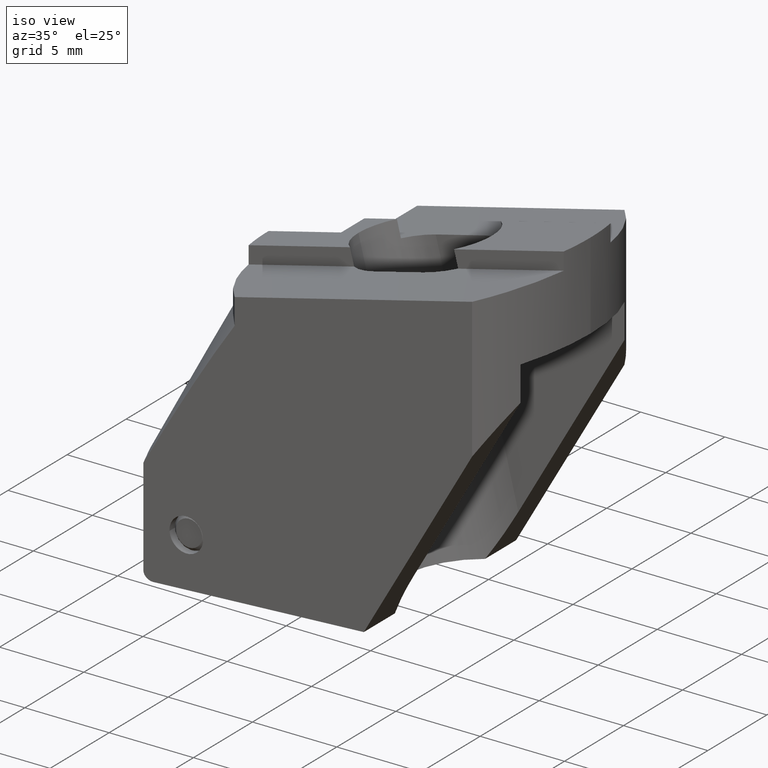
[diagram: clean part render]
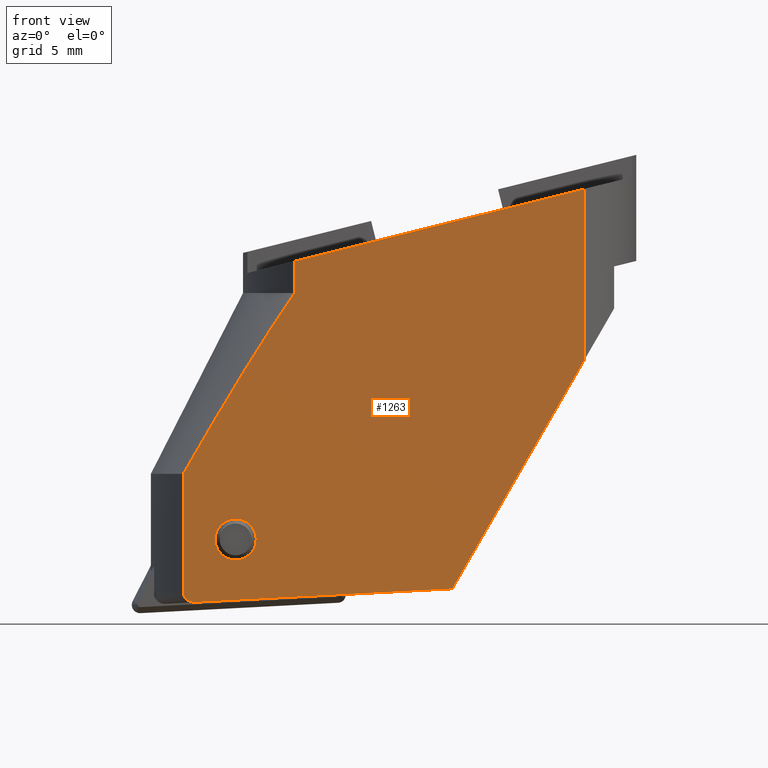
[diagram: tour spotlight — one face highlighted and labeled with its STEP entity id]
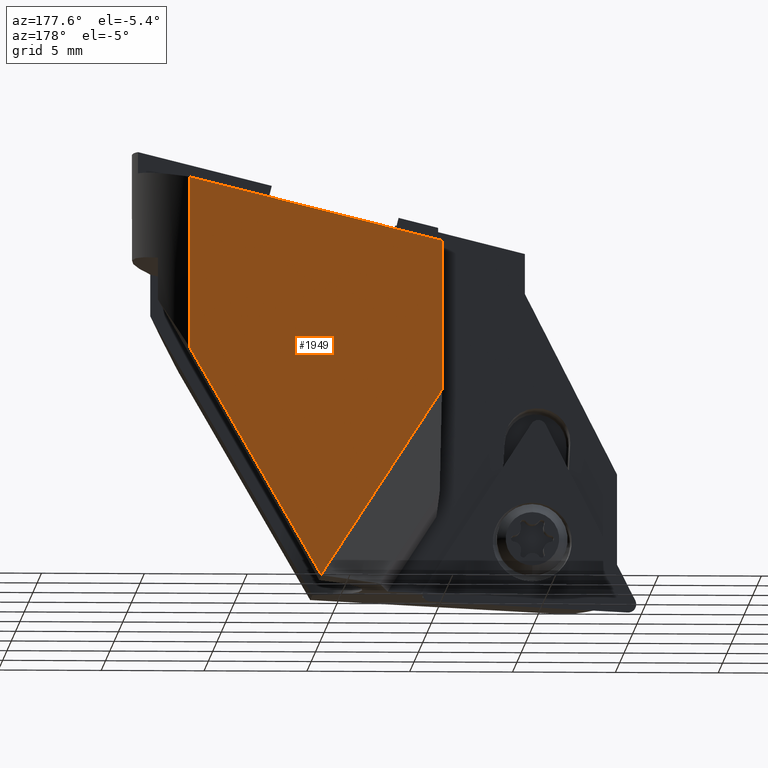
[diagram: tour spotlight — one face highlighted and labeled with its STEP entity id]
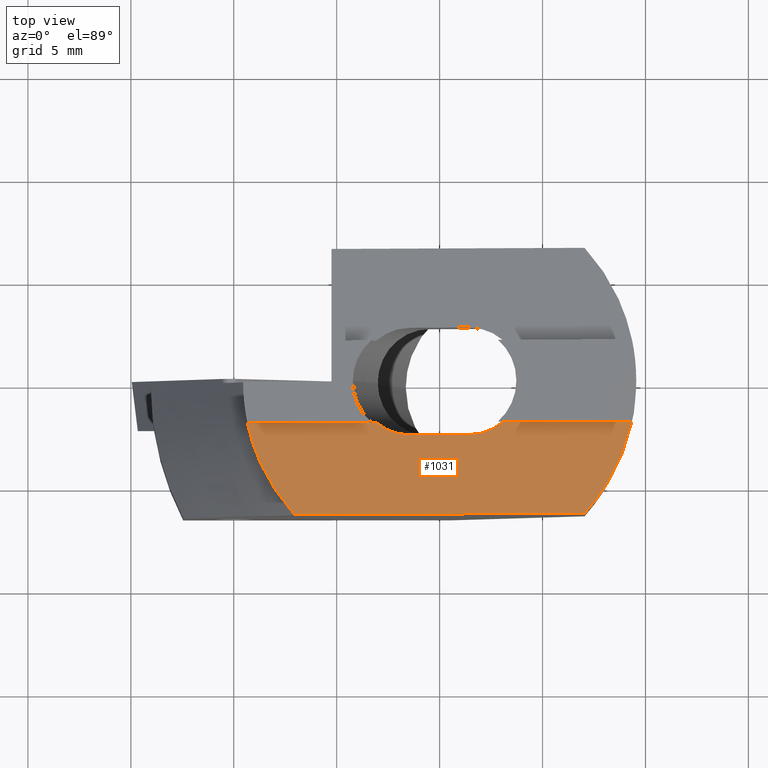
[diagram: tour spotlight — one face highlighted and labeled with its STEP entity id]
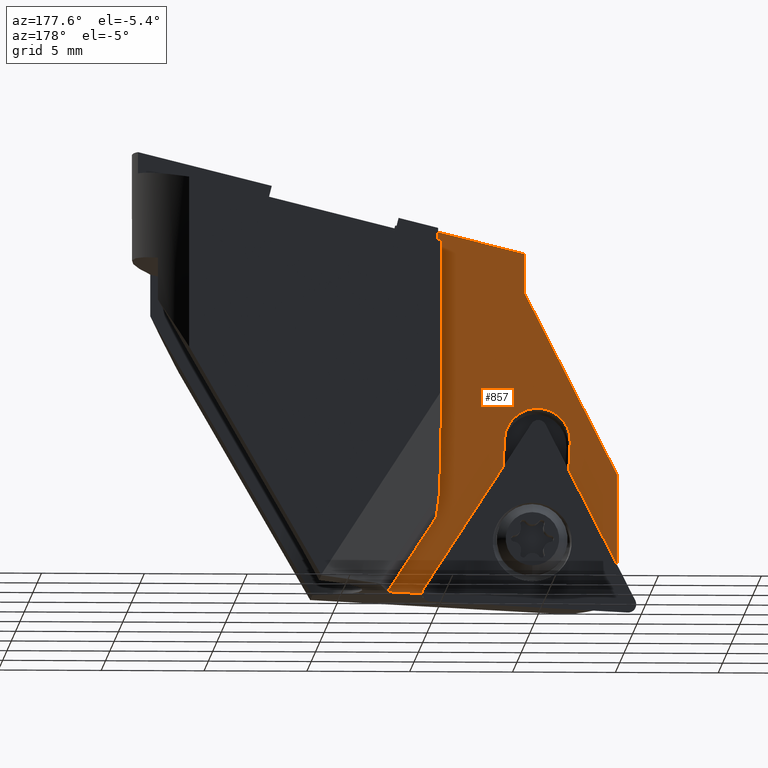
[diagram: tour spotlight — one face highlighted and labeled with its STEP entity id]
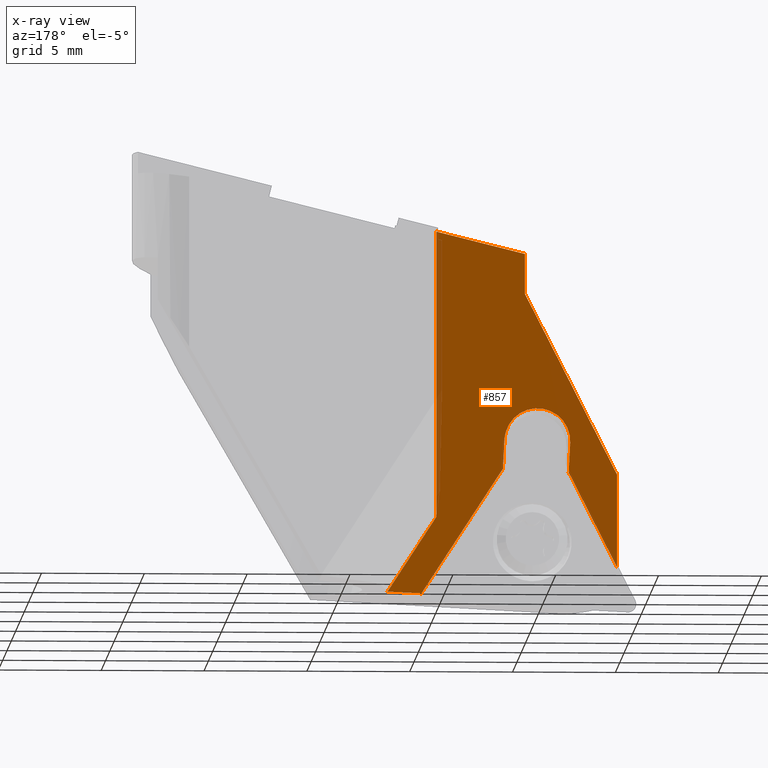
[diagram: x-ray of the same camera — body ghosted, this tour face saturated]
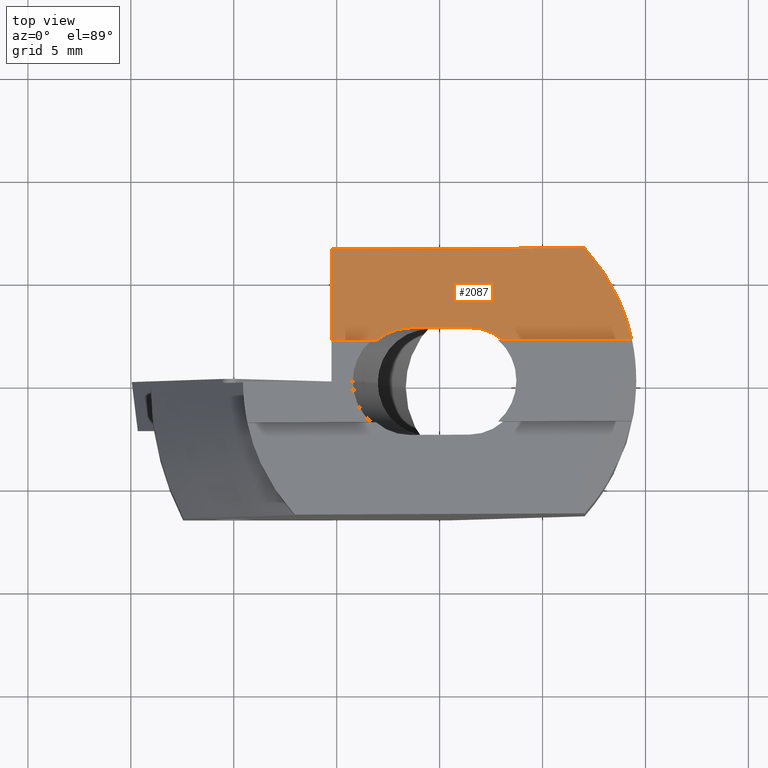
[diagram: tour spotlight — one face highlighted and labeled with its STEP entity id]
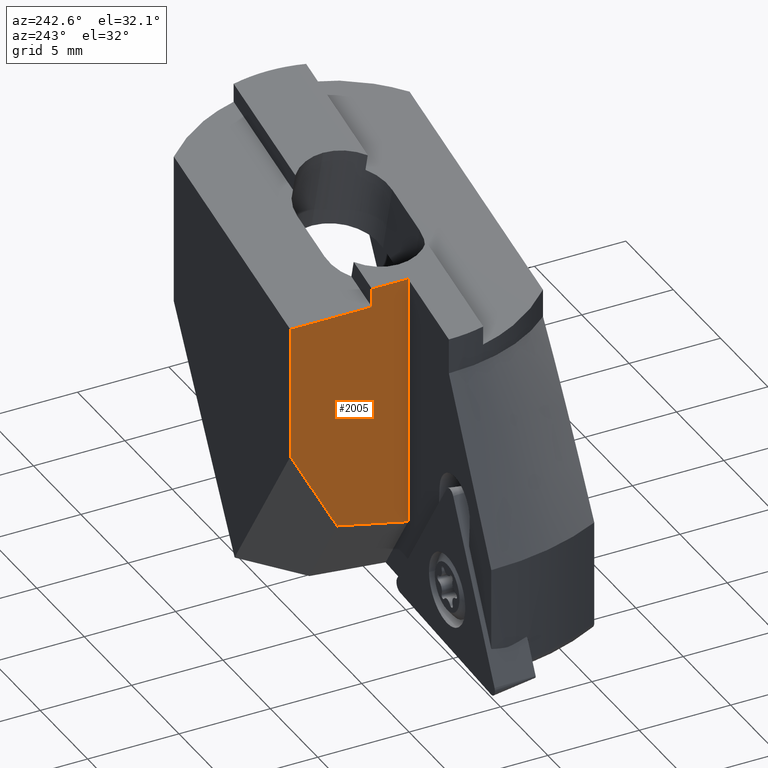
[diagram: tour spotlight — one face highlighted and labeled with its STEP entity id]
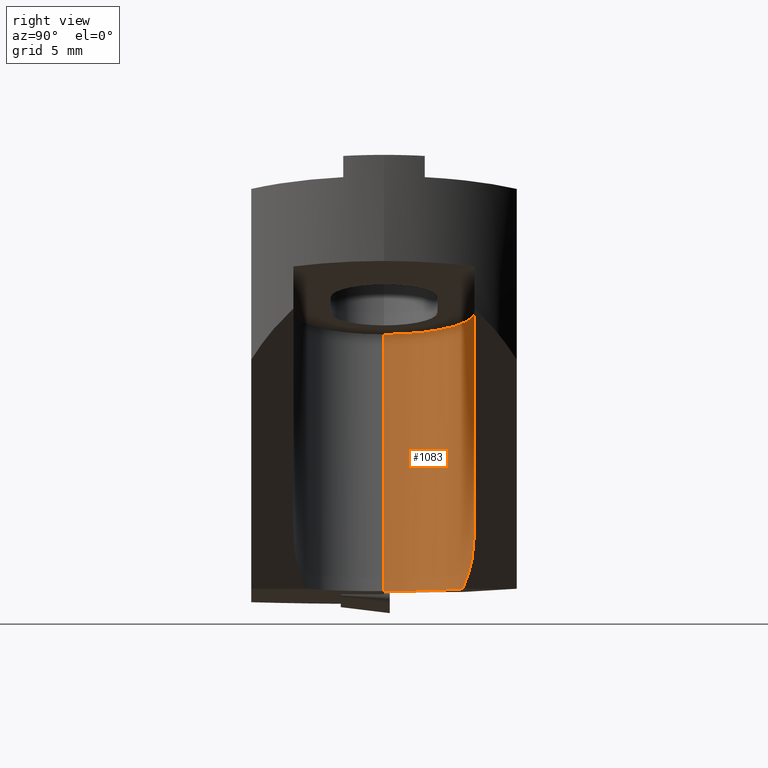
[diagram: tour spotlight — one face highlighted and labeled with its STEP entity id]
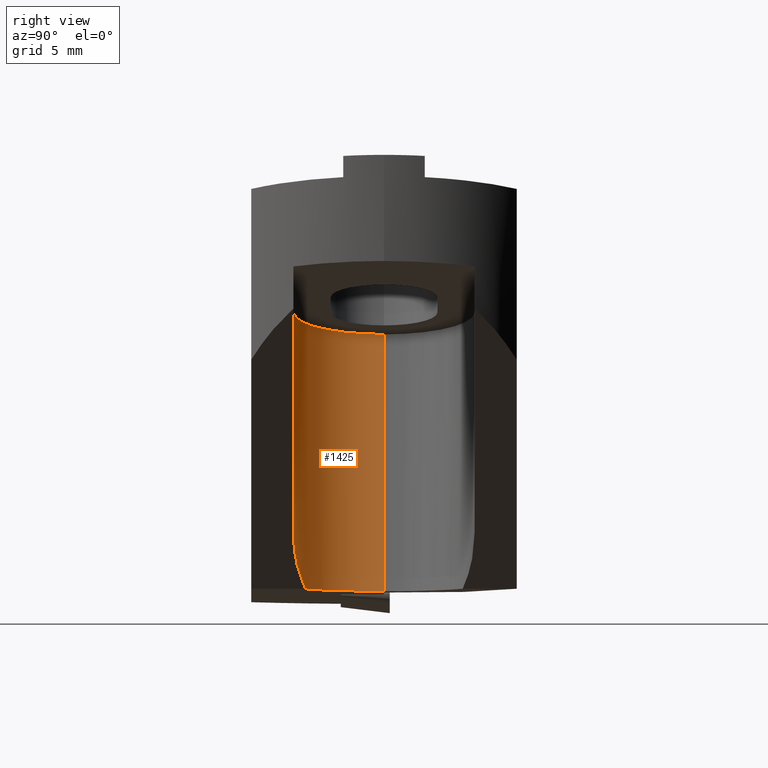
[diagram: tour spotlight — one face highlighted and labeled with its STEP entity id]
A machine part: a face-by-face anatomy tour. The part has 142 B-rep faces; the first image is the clean iso view, then the 8 largest visible faces are spotlighted one at a time (largest first), each with its STEP entity span.

Face 1 — front view, entity #1263. In plain terms, the highlighted planar face has unit normal (0, 1, 0).
Definition (entity closure, byte-faithful):
#831=EDGE_CURVE('NONE',#1551,#1769,#2325,.F.);
#975=EDGE_CURVE('NONE',#1769,#1551,#2488,.T.);
#1073=EDGE_CURVE('NONE',#1599,#2147,#2594,.F.);
#1217=EDGE_CURVE('NONE',#1223,#1481,#2755,.T.);
#1223=VERTEX_POINT('NONE',#2763);
#1263=ADVANCED_FACE('NONE',(#2806,#2807),#2808,.F.);
#1277=VERTEX_POINT('NONE',#2824);
#1465=EDGE_CURVE('NONE',#1223,#1599,#3038,.F.);
#1481=VERTEX_POINT('NONE',#3055);
#1525=VERTEX_POINT('NONE',#3103);
#1551=VERTEX_POINT('NONE',#3130);
#1599=VERTEX_POINT('NONE',#3182);
#1633=EDGE_CURVE('NONE',#2147,#1525,#3216,.F.);
#1759=EDGE_CURVE('NONE',#1277,#1481,#3353,.T.);
#1769=VERTEX_POINT('NONE',#3363);
#1773=EDGE_CURVE('NONE',#1525,#1947,#3367,.F.);
#1859=EDGE_CURVE('NONE',#1947,#2225,#3459,.F.);
#1861=EDGE_CURVE('NONE',#2225,#1277,#3461,.F.);
#1947=VERTEX_POINT('NONE',#3558);
#2147=VERTEX_POINT('NONE',#3779);
#2225=VERTEX_POINT('NONE',#3865);
#2325=CIRCLE('',#3983,1.0);
#2488=CIRCLE('',#4200,1.0);
#2594=(B_SPLINE_CURVE(2,(#4342,#4343,#4344),.UNSPECIFIED.,.F.,.F.)B_SPLINE_CURVE_WITH_KNOTS((3,3),(1.07464493060161,11.237102277789),.UNSPECIFIED.)RATIONAL_B_SPLINE_CURVE((1.00707894467715,1.0376163031865,1.0126640637654))BOUNDED_CURVE()REPRESENTATION_ITEM('')GEOMETRIC_REPRESENTATION_ITEM()CURVE());
#2755=LINE('',#4557,#4558);
#2763=CARTESIAN_POINT('',(-7.04272674466361,-6.45,-5.16764505031938));
#2806=FACE_OUTER_BOUND('',#4626,.T.);
#2807=FACE_BOUND('',#4627,.T.);
#2808=PLANE('',#4628);
#2824=CARTESIAN_POINT('',(7.0427267446636,-6.45,-9.94592974745812));
#3038=LINE('',#5327,#5328);
#3055=CARTESIAN_POINT('',(7.0427267446636,-6.45,-1.65574706268502));
#3103=CARTESIAN_POINT('',(-12.4594702937163,-6.45,-21.2390013600951));
#3130=CARTESIAN_POINT('',(-8.9097442182443,-6.45,-18.6278833181964));
#3182=CARTESIAN_POINT('',(-7.04272674466361,-6.45,-6.70750493533695));
#3216=LINE('',#5570,#5571);
#3353=LINE('',#5746,#5747);
#3363=CARTESIAN_POINT('',(-10.9070032877534,-6.45,-18.7325552306822));
#3367=B_SPLINE_CURVE_WITH_KNOTS('',3,(#5768,#5769,#5770,#5771,#5772,#5773,#5774,#5775,#5776,#5777,#5778,#5779,#5780),.UNSPECIFIED.,.F.,.F.,(4,3,3,3,4),(0.0,0.5,0.777353584544422,0.957356232730412,1.0),.UNSPECIFIED.);
#3459=LINE('',#5908,#5909);
#3461=LINE('',#5912,#5913);
#3558=CARTESIAN_POINT('',(-11.8674605682894,-6.45,-21.7319322228152));
#3779=CARTESIAN_POINT('',(-12.4594702937163,-6.45,-15.5));
#3865=CARTESIAN_POINT('',(0.615788775900222,-6.45,-21.0777128464498));
#3983=AXIS2_PLACEMENT_3D('',#6559,#6560,#6561);
#4200=AXIS2_PLACEMENT_3D('',#6777,#6778,#6779);
#4342=CARTESIAN_POINT('',(-12.4594702937163,-6.45,-15.5));
#4343=CARTESIAN_POINT('',(-9.23653085380018,-6.45,-9.88269283967115));
#4344=CARTESIAN_POINT('',(-7.0427267446628,-6.45,-6.70750493533578));
#4557=CARTESIAN_POINT('',(-20.1490739593907,-6.45,-8.43542442593646));
#4558=VECTOR('',#7099,1.0);
#4626=EDGE_LOOP('',(#7181,#7182,#7183,#7184,#7185,#7186,#7187,#7188));
#4627=EDGE_LOOP('',(#7189,#7190));
#4628=AXIS2_PLACEMENT_3D('',#7191,#7192,#7193);
#5327=CARTESIAN_POINT('',(-7.0427267446636,-6.45,0.679583590823389));
#5328=VECTOR('',#7496,1.0);
#5570=CARTESIAN_POINT('',(-12.4594702937163,-6.45,0.67958359082339));
#5571=VECTOR('',#7663,1.0);
#5746=CARTESIAN_POINT('',(7.0427267446636,-6.45,0.54399383374837));
#5747=VECTOR('',#7822,1.0);
#5768=CARTESIAN_POINT('',(-11.8674605682894,-6.45,-21.7319322228152));
#5769=CARTESIAN_POINT('',(-12.0106468469518,-6.45,-21.7394362350104));
#5770=CARTESIAN_POINT('',(-12.1578572144117,-6.45,-21.6984870925847));
#5771=CARTESIAN_POINT('',(-12.2711122396982,-6.45,-21.6100825145091));
#5772=CARTESIAN_POINT('',(-12.33393561416,-6.45,-21.5610438612703));
#5773=CARTESIAN_POINT('',(-12.3859189219274,-6.45,-21.4970247917045));
#5774=CARTESIAN_POINT('',(-12.4188568198595,-6.45,-21.4245555871746));
#5775=CARTESIAN_POINT('',(-12.440233536022,-6.45,-21.377523028541));
#5776=CARTESIAN_POINT('',(-12.4534470951353,-6.45,-21.3278236544697));
#5777=CARTESIAN_POINT('',(-12.457799111519,-6.45,-21.2761254958005));
#5778=CARTESIAN_POINT('',(-12.4588301317606,-6.45,-21.2638778746196));
#5779=CARTESIAN_POINT('',(-12.4594698149512,-6.45,-21.2512301235861));
#5780=CARTESIAN_POINT('',(-12.4594702937163,-6.45,-21.2390013600951));
#5908=CARTESIAN_POINT('',(-17.4822005220632,-6.45,-22.0261882750443));
#5909=VECTOR('',#7928,1.0);
#5912=CARTESIAN_POINT('',(0.592248115811812,-6.45,-21.1184864657666));
#5913=VECTOR('',#7929,1.0);
#6559=CARTESIAN_POINT('',(-9.90837375299887,-6.45000000000004,-18.6802192744393));
#6560=DIRECTION('',(-5.88008236220283E-050,-1.0,-6.07224363551833E-034));
#6561=DIRECTION('',(-0.998629534754575,3.17796677204871E-035,-0.0523359562429256));
#6777=CARTESIAN_POINT('',(-9.90837375299887,-6.45000000000004,-18.6802192744393));
#6778=DIRECTION('',(5.88008236220283E-050,1.0,6.07224363551833E-034));
#6779=DIRECTION('',(-0.998629534754575,3.17796677204871E-035,-0.0523359562429256));
#7099=DIRECTION('',(0.970295726275998,-1.46900869084757E-034,0.241921895599661));
#7181=ORIENTED_EDGE('',*,*,#1633,.T.);
#7182=ORIENTED_EDGE('',*,*,#1773,.T.);
#7183=ORIENTED_EDGE('',*,*,#1859,.T.);
#7184=ORIENTED_EDGE('',*,*,#1861,.T.);
#7185=ORIENTED_EDGE('',*,*,#1759,.T.);
#7186=ORIENTED_EDGE('',*,*,#1217,.F.);
#7187=ORIENTED_EDGE('',*,*,#1465,.T.);
#7188=ORIENTED_EDGE('',*,*,#1073,.T.);
#7189=ORIENTED_EDGE('',*,*,#975,.T.);
#7190=ORIENTED_EDGE('',*,*,#831,.T.);
#7191=CARTESIAN_POINT('',(-18.5234759239691,-6.45,-31.0));
#7192=DIRECTION('',(5.94003613772619E-050,1.0,6.07224363551833E-034));
#7193=DIRECTION('',(1.0,9.4955677457598E-066,-9.78227570280807E-017));
#7496=DIRECTION('',(1.22464679914735E-016,-0.0,1.0));
#7663=DIRECTION('',(1.22464679914735E-016,-0.0,1.0));
#7822=DIRECTION('',(1.22464679914735E-016,-0.0,1.0));
#7928=DIRECTION('',(-0.998629534754574,3.17796677204981E-035,-0.0523359562429437));
#7929=DIRECTION('',(-0.500000000000002,5.25871724632724E-034,-0.866025403784438));

Face 2 — auxiliary view, entity #1949. In plain terms, the highlighted planar face has unit normal (0, -1, -0).
Definition (entity closure, byte-faithful):
#1099=EDGE_CURVE('NONE',#1437,#2069,#2624,.T.);
#1339=EDGE_CURVE('NONE',#1955,#1437,#2893,.T.);
#1403=VERTEX_POINT('NONE',#2966);
#1437=VERTEX_POINT('NONE',#3004);
#1485=VERTEX_POINT('NONE',#3059);
#1949=ADVANCED_FACE('NONE',(#3560),#3561,.F.);
#1955=VERTEX_POINT('NONE',#3567);
#2069=VERTEX_POINT('NONE',#3691);
#2101=EDGE_CURVE('NONE',#1485,#1403,#3728,.T.);
#2165=EDGE_CURVE('NONE',#1955,#1403,#3798,.T.);
#2181=EDGE_CURVE('NONE',#2069,#1485,#3815,.F.);
#2624=LINE('',#4389,#4390);
#2893=LINE('',#4738,#4739);
#2966=CARTESIAN_POINT('',(0.623252953902507,6.45,-21.0647845109131));
#3004=CARTESIAN_POINT('',(-5.25,6.45,-4.72066807142886));
#3059=CARTESIAN_POINT('',(7.0427267446636,6.45,-9.94592974745812));
#3560=FACE_OUTER_BOUND('',#6050,.T.);
#3561=PLANE('',#6051);
#3567=CARTESIAN_POINT('',(-5.25,6.45,-12.020768063578));
#3691=CARTESIAN_POINT('',(7.0427267446636,6.45,-1.65574706268502));
#3728=LINE('',#6287,#6288);
#3798=LINE('',#6385,#6386);
#3815=LINE('',#6407,#6408);
#4389=CARTESIAN_POINT('',(-13.3353692732387,6.45,-6.73657704457501));
#4390=VECTOR('',#6937,1.0);
#4738=CARTESIAN_POINT('',(-5.25,6.45,-24.3018623143154));
#4739=VECTOR('',#7301,1.0);
#6050=EDGE_LOOP('',(#8080,#8081,#8082,#8083,#8084));
#6051=AXIS2_PLACEMENT_3D('',#8085,#8086,#8087);
#6287=CARTESIAN_POINT('',(1.8305867316158,6.45,-18.9736210662196));
#6288=VECTOR('',#8287,1.0);
#6385=CARTESIAN_POINT('',(-3.92266536494165,6.45,-14.064684163362));
#6386=VECTOR('',#8364,1.0);
#6407=CARTESIAN_POINT('',(7.0427267446636,6.45,0.543993833748365));
#6408=VECTOR('',#8382,1.0);
#6937=DIRECTION('',(0.970295726275998,0.0,0.241921895599661));
#7301=DIRECTION('',(1.66709421892066E-016,0.0,1.0));
#8080=ORIENTED_EDGE('',*,*,#2165,.F.);
#8081=ORIENTED_EDGE('',*,*,#1339,.T.);
#8082=ORIENTED_EDGE('',*,*,#1099,.T.);
#8083=ORIENTED_EDGE('',*,*,#2181,.T.);
#8084=ORIENTED_EDGE('',*,*,#2101,.T.);
#8085=CARTESIAN_POINT('',(-8.61676699753718,6.45,-31.0));
#8086=DIRECTION('',(0.0,-1.0,-0.0));
#8087=DIRECTION('',(-1.22464679914735E-016,0.0,-1.0));
#8287=DIRECTION('',(-0.500000000000002,0.0,-0.866025403784438));
#8364=DIRECTION('',(0.544639035015023,0.0,-0.838670567945427));
#8382=DIRECTION('',(1.22464679914735E-016,-0.0,1.0));

Face 3 — top view, entity #1031. In plain terms, the highlighted planar face has unit normal (-0.2419, 0, 0.9703).
Definition (entity closure, byte-faithful):
#983=EDGE_CURVE('NONE',#2169,#1625,#2497,.T.);
#1031=ADVANCED_FACE('NONE',(#2550),#2551,.T.);
#1169=EDGE_CURVE('NONE',#1335,#1625,#2703,.F.);
#1211=EDGE_CURVE('NONE',#1459,#1271,#2749,.T.);
#1217=EDGE_CURVE('NONE',#1223,#1481,#2755,.T.);
#1223=VERTEX_POINT('NONE',#2763);
#1233=EDGE_CURVE('NONE',#1271,#2169,#2774,.T.);
#1271=VERTEX_POINT('NONE',#2816);
#1335=VERTEX_POINT('NONE',#2889);
#1459=VERTEX_POINT('NONE',#3032);
#1481=VERTEX_POINT('NONE',#3055);
#1625=VERTEX_POINT('NONE',#3208);
#1651=EDGE_CURVE('NONE',#1335,#1481,#3235,.T.);
#1671=EDGE_CURVE('NONE',#1223,#2081,#3256,.T.);
#1777=EDGE_CURVE('NONE',#1459,#2081,#3372,.F.);
#2081=VERTEX_POINT('NONE',#3706);
#2169=VERTEX_POINT('NONE',#3802);
#2497=CIRCLE('',#4212,2.6);
#2550=FACE_OUTER_BOUND('',#4280,.T.);
#2551=PLANE('',#4281);
#2703=LINE('',#4491,#4492);
#2749=CIRCLE('',#4550,2.6);
#2755=LINE('',#4557,#4558);
#2763=CARTESIAN_POINT('',(-7.04272674466361,-6.45,-5.16764505031938));
#2774=LINE('',#4580,#4581);
#2816=CARTESIAN_POINT('',(-1.45380557193916,-2.6,-3.77417049627607));
#2889=CARTESIAN_POINT('',(9.34195877479664,-1.9825,-1.0824841325389));
#3032=CARTESIAN_POINT('',(-3.0860073111691,-1.9825,-4.18112409615542));
#3055=CARTESIAN_POINT('',(7.0427267446636,-6.45,-1.65574706268502));
#3208=CARTESIAN_POINT('',(3.07958038885602,-1.9825,-2.64387042855373));
#3235=ELLIPSE('',#5598,9.84236016029151,9.55);
#3256=ELLIPSE('',#5624,9.84236016029151,9.55);
#3372=LINE('',#5786,#5787);
#3706=CARTESIAN_POINT('',(-9.34195877479664,-1.9825,-5.7409079804655));
#3802=CARTESIAN_POINT('',(1.44737864962608,-2.6,-3.05082402843309));
#4212=AXIS2_PLACEMENT_3D('',#6791,#6792,#6793);
#4280=EDGE_LOOP('',(#6865,#6866,#6867,#6868,#6869,#6870,#6871,#6872));
#4281=AXIS2_PLACEMENT_3D('',#6873,#6874,#6875);
#4491=CARTESIAN_POINT('',(-16.3828186340895,-1.9825,-7.49639150748166));
#4492=VECTOR('',#7037,1.0);
#4550=AXIS2_PLACEMENT_3D('',#7096,#7097,#7098);
#4557=CARTESIAN_POINT('',(-20.1490739593907,-6.45,-8.43542442593646));
#4558=VECTOR('',#7099,1.0);
#4580=CARTESIAN_POINT('',(-8.91831210301434,-2.6,-5.63528100187886));
#4581=VECTOR('',#7139,1.0);
#5598=AXIS2_PLACEMENT_3D('',#7683,#7684,#7685);
#5624=AXIS2_PLACEMENT_3D('',#7696,#7697,#7698);
#5786=CARTESIAN_POINT('',(-16.3828186340895,-1.9825,-7.49639150748166));
#5787=VECTOR('',#7834,1.0);
#6791=CARTESIAN_POINT('',(1.44737864962608,-2.905022545472E-016,-3.05082402843309));
#6792=DIRECTION('',(-0.241921895599661,2.14902735866576E-019,0.970295726275998));
#6793=DIRECTION('',(0.970295726275998,-4.58826856565405E-035,0.241921895599661));
#6865=ORIENTED_EDGE('',*,*,#983,.F.);
#6866=ORIENTED_EDGE('',*,*,#1233,.F.);
#6867=ORIENTED_EDGE('',*,*,#1211,.F.);
#6868=ORIENTED_EDGE('',*,*,#1777,.T.);
#6869=ORIENTED_EDGE('',*,*,#1671,.F.);
#6870=ORIENTED_EDGE('',*,*,#1217,.T.);
#6871=ORIENTED_EDGE('',*,*,#1651,.F.);
#6872=ORIENTED_EDGE('',*,*,#1169,.T.);
#6873=CARTESIAN_POINT('',(-16.3828186340895,-12.509142191244,-7.49639150748166));
#6874=DIRECTION('',(-0.241921895599661,2.14902735866576E-019,0.970295726275998));
#6875=DIRECTION('',(8.88314533638587E-019,1.0,-9.9802978888186E-035));
#7037=DIRECTION('',(0.970295726275998,0.0,0.241921895599661));
#7096=CARTESIAN_POINT('',(-1.45380557193916,-1.43178614447002E-016,-3.77417049627607));
#7097=DIRECTION('',(-0.241921895599661,2.14902735866576E-019,0.970295726275998));
#7098=DIRECTION('',(0.970295726275998,-4.58826856565405E-035,0.241921895599661));
#7099=DIRECTION('',(0.970295726275998,-1.46900869084757E-034,0.241921895599661));
#7139=DIRECTION('',(0.970295726275998,-1.45043768894382E-016,0.241921895599661));
#7683=CARTESIAN_POINT('',(-4.17812265525907E-016,0.0,-3.4116960565022));
#7684=DIRECTION('',(0.241921895599661,-2.14902735866576E-019,-0.970295726275998));
#7685=DIRECTION('',(0.970295726275998,0.0,0.241921895599661));
#7696=CARTESIAN_POINT('',(-4.17812265525907E-016,0.0,-3.4116960565022));
#7697=DIRECTION('',(0.241921895599661,-2.14902735866576E-019,-0.970295726275998));
#7698=DIRECTION('',(0.970295726275998,0.0,0.241921895599661));
#7834=DIRECTION('',(0.970295726275998,0.0,0.241921895599661));

Face 4 — auxiliary view, entity #857. An x-ray twin of the same camera follows (body ghosted, this face saturated) — the face is partly hidden behind the body. In plain terms, the highlighted planar face has unit normal (0, 1, 0).
Definition (entity closure, byte-faithful):
#791=EDGE_CURVE('NONE',#1269,#1865,#2281,.T.);
#857=ADVANCED_FACE('NONE',(#2355),#2356,.T.);
#891=EDGE_CURVE('NONE',#1627,#1021,#2396,.T.);
#895=EDGE_CURVE('NONE',#1627,#905,#2400,.T.);
#905=VERTEX_POINT('NONE',#2412);
#1007=EDGE_CURVE('NONE',#1563,#2205,#2523,.F.);
#1021=VERTEX_POINT('NONE',#2539);
#1075=VERTEX_POINT('NONE',#2596);
#1097=EDGE_CURVE('NONE',#1021,#2155,#2622,.T.);
#1125=EDGE_CURVE('NONE',#2205,#905,#2653,.T.);
#1177=EDGE_CURVE('NONE',#2235,#1563,#2711,.T.);
#1267=EDGE_CURVE('NONE',#1269,#1075,#2812,.T.);
#1269=VERTEX_POINT('NONE',#2814);
#1287=VERTEX_POINT('NONE',#2835);
#1503=EDGE_CURVE('NONE',#2235,#1287,#3078,.T.);
#1547=VERTEX_POINT('NONE',#3126);
#1563=VERTEX_POINT('NONE',#3144);
#1567=EDGE_CURVE('NONE',#1865,#1547,#3149,.F.);
#1577=EDGE_CURVE('NONE',#1287,#1547,#3159,.F.);
#1627=VERTEX_POINT('NONE',#3210);
#1865=VERTEX_POINT('NONE',#3465);
#2073=EDGE_CURVE('NONE',#2155,#1075,#3696,.T.);
#2155=VERTEX_POINT('NONE',#3787);
#2205=VERTEX_POINT('NONE',#3844);
#2235=VERTEX_POINT('NONE',#3876);
#2281=LINE('',#3922,#3923);
#2355=FACE_OUTER_BOUND('',#4023,.T.);
#2356=PLANE('',#4024);
#2396=LINE('',#4076,#4077);
#2400=LINE('',#4084,#4085);
#2412=CARTESIAN_POINT('',(-11.6817636810633,0.0,-15.413639831277));
#2523=CIRCLE('',#4247,1.6);
#2539=CARTESIAN_POINT('',(-14.03,0.0,-15.5));
#2596=CARTESIAN_POINT('',(-9.55,0.0,-4.76216485430461));
#2622=LINE('',#4385,#4386);
#2653=LINE('',#4425,#4426);
#2711=LINE('',#4504,#4505);
#2812=LINE('',#4634,#4635);
#2814=CARTESIAN_POINT('',(-5.25,0.0,-3.69005444207897));
#2835=CARTESIAN_POINT('',(-4.52416435449227,8.88178419700125E-016,-21.3470863756325));
#3078=LINE('',#5381,#5382);
#3126=CARTESIAN_POINT('',(-2.87515486263305,0.0,-21.2606654501475));
#3144=CARTESIAN_POINT('',(-8.56177908735759,0.0,-13.8030599776286));
#3149=LINE('',#5471,#5472);
#3159=LINE('',#5488,#5489);
#3210=CARTESIAN_POINT('',(-14.03,0.0,-20.0223131002308));
#3465=CARTESIAN_POINT('',(-5.25,0.0,-17.6037246286307));
#3696=LINE('',#6248,#6249);
#3787=CARTESIAN_POINT('',(-9.55,0.0,-6.70750493533696));
#3844=CARTESIAN_POINT('',(-11.7573935985722,0.0,-13.970535037606));
#3876=CARTESIAN_POINT('',(-8.48614916984861,0.0,-15.2461647712996));
#3922=CARTESIAN_POINT('',(-5.25,0.0,-7.80186231431537));
#3923=VECTOR('',#6508,1.0);
#4023=EDGE_LOOP('',(#6600,#6601,#6602,#6603,#6604,#6605,#6606,#6607,#6608,#6609,#6610,#6611));
#4024=AXIS2_PLACEMENT_3D('',#6612,#6613,#6614);
#4076=CARTESIAN_POINT('',(-14.03,0.0,0.679583590823389));
#4077=VECTOR('',#6674,1.0);
#4084=CARTESIAN_POINT('',(-8.05550187107744,0.0,-8.29670030728702));
#4085=VECTOR('',#6676,1.0);
#4247=AXIS2_PLACEMENT_3D('',#6824,#6825,#6826);
#4385=CARTESIAN_POINT('',(-9.55,0.0,-6.70750493533695));
#4386=VECTOR('',#6936,1.0);
#4425=CARTESIAN_POINT('',(-12.1804555299629,0.0,-5.89803249736308));
#4426=VECTOR('',#6969,1.0);
#4504=CARTESIAN_POINT('',(-8.98484101874828,0.0,-5.73055743738572));
#4505=VECTOR('',#7047,1.0);
#4634=CARTESIAN_POINT('',(-2.21086627695213,0.0,-2.9323133005381));
#4635=VECTOR('',#7197,1.0);
#5381=CARTESIAN_POINT('',(-10.4773801108404,0.0,-12.1799380104026));
#5382=VECTOR('',#7531,1.0);
#5471=CARTESIAN_POINT('',(-15.0965932343717,0.0,-2.44130069408811));
#5472=VECTOR('',#7619,1.0);
#5488=CARTESIAN_POINT('',(-15.3279531034508,8.88178419700125E-016,-21.9132889518086));
#5489=VECTOR('',#7625,1.0);
#6248=CARTESIAN_POINT('',(-9.55,0.0,0.679583590823389));
#6249=VECTOR('',#8245,1.0);
#6508=DIRECTION('',(-1.66709421892066E-016,0.0,-1.0));
#6600=ORIENTED_EDGE('',*,*,#1577,.F.);
#6601=ORIENTED_EDGE('',*,*,#1503,.F.);
#6602=ORIENTED_EDGE('',*,*,#1177,.T.);
#6603=ORIENTED_EDGE('',*,*,#1007,.T.);
#6604=ORIENTED_EDGE('',*,*,#1125,.T.);
#6605=ORIENTED_EDGE('',*,*,#895,.F.);
#6606=ORIENTED_EDGE('',*,*,#891,.T.);
#6607=ORIENTED_EDGE('',*,*,#1097,.T.);
#6608=ORIENTED_EDGE('',*,*,#2073,.T.);
#6609=ORIENTED_EDGE('',*,*,#1267,.F.);
#6610=ORIENTED_EDGE('',*,*,#791,.T.);
#6611=ORIENTED_EDGE('',*,*,#1567,.T.);
#6612=CARTESIAN_POINT('',(-15.9326041974579,0.0,2.0));
#6613=DIRECTION('',(0.0,1.0,0.0));
#6614=DIRECTION('',(1.0,0.0,-1.22464679914735E-016));
#6674=DIRECTION('',(1.22464679914735E-016,-0.0,1.0));
#6676=DIRECTION('',(0.453990499739563,0.0,0.89100652418836));
#6824=CARTESIAN_POINT('',(-10.1595863429649,5.6843418860808E-014,-13.8867975076173));
#6825=DIRECTION('',(-0.0,1.0,0.0));
#6826=DIRECTION('',(0.998629534754575,0.0,0.052335956242926));
#6936=DIRECTION('',(0.453990499739548,0.0,0.891006524188367));
#6969=DIRECTION('',(0.0523359562429257,0.0,-0.998629534754575));
#7047=DIRECTION('',(-0.0523359562429254,0.0,0.998629534754575));
#7197=DIRECTION('',(-0.970295726275998,0.0,-0.241921895599661));
#7531=DIRECTION('',(0.544639035015007,0.0,-0.838670567945437));
#7619=DIRECTION('',(-0.544639035015028,0.0,0.838670567945423));
#7625=DIRECTION('',(-0.998629534754574,0.0,-0.0523359562429437));
#8245=DIRECTION('',(1.22464679914735E-016,-0.0,1.0));

Face 5 — top view, entity #2087. In plain terms, the highlighted planar face has unit normal (0.2419, 0, -0.9703).
Definition (entity closure, byte-faithful):
#907=EDGE_CURVE('NONE',#1429,#2207,#2414,.F.);
#1099=EDGE_CURVE('NONE',#1437,#2069,#2624,.T.);
#1255=EDGE_CURVE('NONE',#1509,#1663,#2797,.T.);
#1311=EDGE_CURVE('NONE',#1653,#1509,#2862,.T.);
#1387=EDGE_CURVE('NONE',#1835,#2069,#2946,.F.);
#1429=VERTEX_POINT('NONE',#2995);
#1431=EDGE_CURVE('NONE',#1663,#1429,#2997,.T.);
#1437=VERTEX_POINT('NONE',#3004);
#1509=VERTEX_POINT('NONE',#3085);
#1653=VERTEX_POINT('NONE',#3237);
#1663=VERTEX_POINT('NONE',#3248);
#1789=EDGE_CURVE('NONE',#2207,#1835,#3384,.T.);
#1835=VERTEX_POINT('NONE',#3433);
#1965=EDGE_CURVE('NONE',#1437,#1653,#3577,.T.);
#2069=VERTEX_POINT('NONE',#3691);
#2087=ADVANCED_FACE('NONE',(#3712),#3713,.F.);
#2207=VERTEX_POINT('NONE',#3846);
#2414=CIRCLE('',#4100,2.6);
#2624=LINE('',#4389,#4390);
#2797=CIRCLE('',#4615,2.6);
#2862=LINE('',#4697,#4698);
#2946=ELLIPSE('',#4814,9.84236016029151,9.55);
#2995=CARTESIAN_POINT('',(1.44737864962608,2.6,-3.05082402843309));
#2997=LINE('',#4888,#4889);
#3004=CARTESIAN_POINT('',(-5.25,6.45,-4.72066807142886));
#3085=CARTESIAN_POINT('',(-3.0860073111691,1.9825,-4.18112409615542));
#3237=CARTESIAN_POINT('',(-5.25,1.9825,-4.72066807142886));
#3248=CARTESIAN_POINT('',(-1.45380557193916,2.6,-3.77417049627607));
#3384=LINE('',#5804,#5805);
#3433=CARTESIAN_POINT('',(9.34195877479664,1.9825,-1.0824841325389));
#3577=LINE('',#6077,#6078);
#3691=CARTESIAN_POINT('',(7.0427267446636,6.45,-1.65574706268502));
#3712=FACE_OUTER_BOUND('',#6268,.T.);
#3713=PLANE('',#6269);
#3846=CARTESIAN_POINT('',(3.07958038885601,1.9825,-2.64387042855373));
#4100=AXIS2_PLACEMENT_3D('',#6693,#6694,#6695);
#4389=CARTESIAN_POINT('',(-13.3353692732387,6.45,-6.73657704457501));
#4390=VECTOR('',#6937,1.0);
#4615=AXIS2_PLACEMENT_3D('',#7163,#7164,#7165);
#4697=CARTESIAN_POINT('',(-12.082316124875,1.9825,-6.42415580563715));
#4698=VECTOR('',#7267,1.0);
#4814=AXIS2_PLACEMENT_3D('',#7366,#7367,#7368);
#4888=CARTESIAN_POINT('',(-6.76806084840708,2.6,-5.09916315095661));
#4889=VECTOR('',#7436,1.0);
#5804=CARTESIAN_POINT('',(-12.082316124875,1.9825,-6.42415580563715));
#5805=VECTOR('',#7847,1.0);
#6077=CARTESIAN_POINT('',(-5.25,12.8483247038417,-4.72066807142886));
#6078=VECTOR('',#8100,1.0);
#6268=EDGE_LOOP('',(#8267,#8268,#8269,#8270,#8271,#8272,#8273,#8274));
#6269=AXIS2_PLACEMENT_3D('',#8275,#8276,#8277);
#6693=CARTESIAN_POINT('',(1.44737864962608,-2.905022545472E-016,-3.05082402843308));
#6694=DIRECTION('',(-0.241921895599661,0.0,0.970295726275998));
#6695=DIRECTION('',(0.970295726275998,0.0,0.241921895599661));
#6937=DIRECTION('',(0.970295726275998,0.0,0.241921895599661));
#7163=CARTESIAN_POINT('',(-1.45380557193916,-1.43178614447002E-016,-3.77417049627607));
#7164=DIRECTION('',(0.241921895599661,0.0,-0.970295726275998));
#7165=DIRECTION('',(0.970295726275998,0.0,0.241921895599661));
#7267=DIRECTION('',(0.970295726275998,0.0,0.241921895599661));
#7366=CARTESIAN_POINT('',(-4.17812265525907E-016,0.0,-3.4116960565022));
#7367=DIRECTION('',(0.241921895599661,0.0,-0.970295726275998));
#7368=DIRECTION('',(0.970295726275998,0.0,0.241921895599661));
#7436=DIRECTION('',(0.970295726275998,-8.48886114494997E-018,0.241921895599661));
#7847=DIRECTION('',(0.970295726275998,0.0,0.241921895599661));
#8100=DIRECTION('',(0.0,-1.0,-0.0));
#8267=ORIENTED_EDGE('',*,*,#1431,.T.);
#8268=ORIENTED_EDGE('',*,*,#907,.T.);
#8269=ORIENTED_EDGE('',*,*,#1789,.T.);
#8270=ORIENTED_EDGE('',*,*,#1387,.T.);
#8271=ORIENTED_EDGE('',*,*,#1099,.F.);
#8272=ORIENTED_EDGE('',*,*,#1965,.T.);
#8273=ORIENTED_EDGE('',*,*,#1311,.T.);
#8274=ORIENTED_EDGE('',*,*,#1255,.T.);
#8275=CARTESIAN_POINT('',(-12.082316124875,10.6966494076833,-6.42415580563715));
#8276=DIRECTION('',(0.241921895599661,0.0,-0.970295726275998));
#8277=DIRECTION('',(0.0,-1.0,0.0));

Face 6 — auxiliary view, entity #2005. In plain terms, the highlighted planar face has unit normal (-1, 0, 0).
Definition (entity closure, byte-faithful):
#791=EDGE_CURVE('NONE',#1269,#1865,#2281,.T.);
#863=EDGE_CURVE('NONE',#991,#1269,#2362,.T.);
#969=EDGE_CURVE('NONE',#1955,#2203,#2482,.T.);
#991=VERTEX_POINT('NONE',#2506);
#1165=EDGE_CURVE('NONE',#1653,#991,#2699,.T.);
#1269=VERTEX_POINT('NONE',#2814);
#1339=EDGE_CURVE('NONE',#1955,#1437,#2893,.T.);
#1417=EDGE_CURVE('NONE',#2203,#1865,#2980,.F.);
#1437=VERTEX_POINT('NONE',#3004);
#1653=VERTEX_POINT('NONE',#3237);
#1865=VERTEX_POINT('NONE',#3465);
#1955=VERTEX_POINT('NONE',#3567);
#1965=EDGE_CURVE('NONE',#1437,#1653,#3577,.T.);
#2005=ADVANCED_FACE('NONE',(#3622),#3623,.T.);
#2203=VERTEX_POINT('NONE',#3842);
#2281=LINE('',#3922,#3923);
#2362=LINE('',#4033,#4034);
#2482=LINE('',#4190,#4191);
#2506=CARTESIAN_POINT('',(-5.25,1.9825,-3.69005444207897));
#2699=LINE('',#4485,#4486);
#2814=CARTESIAN_POINT('',(-5.25,0.0,-3.69005444207897));
#2893=LINE('',#4738,#4739);
#2980=LINE('',#4867,#4868);
#3004=CARTESIAN_POINT('',(-5.25,6.45,-4.72066807142886));
#3237=CARTESIAN_POINT('',(-5.25,1.9825,-4.72066807142886));
#3465=CARTESIAN_POINT('',(-5.25,0.0,-17.6037246286307));
#3567=CARTESIAN_POINT('',(-5.25,6.45,-12.020768063578));
#3577=LINE('',#6077,#6078);
#3622=FACE_OUTER_BOUND('',#6141,.T.);
#3623=PLANE('',#6142);
#3842=CARTESIAN_POINT('',(-5.25,3.88650697642537,-16.7275423833877));
#3922=CARTESIAN_POINT('',(-5.25,0.0,-7.80186231431537));
#3923=VECTOR('',#6508,1.0);
#4033=CARTESIAN_POINT('',(-5.25,-0.250000000000002,-3.69005444207897));
#4034=VECTOR('',#6616,1.0);
#4190=CARTESIAN_POINT('',(-5.25,7.17984720838518,-10.6807113260637));
#4191=VECTOR('',#6775,1.0);
#4485=CARTESIAN_POINT('',(-5.25,1.9825,-12.0139402171339));
#4486=VECTOR('',#7036,1.0);
#4738=CARTESIAN_POINT('',(-5.25,6.45,-24.3018623143154));
#4739=VECTOR('',#7301,1.0);
#4867=CARTESIAN_POINT('',(-5.25,8.387658410556,-15.7127934086251));
#4868=VECTOR('',#7409,1.0);
#6077=CARTESIAN_POINT('',(-5.25,12.8483247038417,-4.72066807142886));
#6078=VECTOR('',#8100,1.0);
#6141=EDGE_LOOP('',(#8169,#8170,#8171,#8172,#8173,#8174,#8175));
#6142=AXIS2_PLACEMENT_3D('',#8176,#8177,#8178);
#6508=DIRECTION('',(-1.66709421892066E-016,0.0,-1.0));
#6616=DIRECTION('',(0.0,-1.0,-0.0));
#6775=DIRECTION('',(-1.46403625491156E-016,-0.478300076895643,-0.878196468019328));
#7036=DIRECTION('',(1.66709421892066E-016,0.0,1.0));
#7301=DIRECTION('',(1.66709421892066E-016,0.0,1.0));
#7409=DIRECTION('',(3.66631793161954E-017,0.975517311034874,0.219922658840078));
#8100=DIRECTION('',(0.0,-1.0,-0.0));
#8169=ORIENTED_EDGE('',*,*,#1339,.F.);
#8170=ORIENTED_EDGE('',*,*,#969,.T.);
#8171=ORIENTED_EDGE('',*,*,#1417,.T.);
#8172=ORIENTED_EDGE('',*,*,#791,.F.);
#8173=ORIENTED_EDGE('',*,*,#863,.F.);
#8174=ORIENTED_EDGE('',*,*,#1165,.F.);
#8175=ORIENTED_EDGE('',*,*,#1965,.F.);
#8176=CARTESIAN_POINT('',(-5.25,15.0,-17.6037246286307));
#8177=DIRECTION('',(-1.0,0.0,1.66709421892066E-016));
#8178=DIRECTION('',(0.0,1.0,0.0));

Face 7 — right view, entity #1083. In plain terms, the highlighted cylindrical surface (partial cylindrical patch) has radius 4.4 mm, axis along (-0.2419, -0, 0.9703).
Definition (entity closure, byte-faithful):
#921=VERTEX_POINT('NONE',#2430);
#1083=ADVANCED_FACE('NONE',(#2607),#2608,.F.);
#1147=EDGE_CURVE('',#1729,#1449,#2678,.T.);
#1235=EDGE_CURVE('NONE',#1803,#1449,#2776,.F.);
#1297=VERTEX_POINT('NONE',#2846);
#1449=VERTEX_POINT('',#3019);
#1489=EDGE_CURVE('NONE',#1297,#921,#3063,.F.);
#1729=VERTEX_POINT('',#3318);
#1803=VERTEX_POINT('NONE',#3400);
#1973=EDGE_CURVE('NONE',#1729,#1297,#3586,.F.);
#2149=EDGE_CURVE('NONE',#921,#1803,#3781,.F.);
#2430=CARTESIAN_POINT('',(2.1834566452663,4.4,-18.3624324473145));
#2607=FACE_OUTER_BOUND('',#4363,.T.);
#2608=CYLINDRICAL_SURFACE('',#4364,4.4);
#2678=LINE('',#4459,#4460);
#2776=CIRCLE('',#4584,4.4);
#2846=CARTESIAN_POINT('',(0.615788775900246,3.82313636832635,-21.0777128464497));
#3019=CARTESIAN_POINT('',(-4.7554191851549,-6.82005410128848E-016,-8.71980974201857));
#3063=ELLIPSE('',#5363,6.33404877435323,4.4);
#3318=CARTESIAN_POINT('',(-1.64471055725848,-6.82005410128844E-016,-21.1961805965714));
#3400=CARTESIAN_POINT('',(-0.486117989540507,4.4,-7.65535340138007));
#3586=ELLIPSE('',#6091,4.48235345780294,4.4);
#3781=LINE('',#6357,#6358);
#4363=EDGE_LOOP('',(#6925,#6926,#6927,#6928,#6929));
#4364=AXIS2_PLACEMENT_3D('',#6930,#6931,#6932);
#4459=CARTESIAN_POINT('',(-3.21297382014741,-6.82005410128848E-016,-14.9062202030115));
#4460=VECTOR('',#7003,1.0);
#4584=AXIS2_PLACEMENT_3D('',#7140,#7141,#7142);
#5363=AXIS2_PLACEMENT_3D('',#7519,#7520,#7521);
#6091=AXIS2_PLACEMENT_3D('',#8113,#8114,#8115);
#6357=CARTESIAN_POINT('',(4.18825191261359,4.4,-26.4032270812342));
#6358=VECTOR('',#8348,1.0);
#6925=ORIENTED_EDGE('',*,*,#1147,.F.);
#6926=ORIENTED_EDGE('',*,*,#1973,.T.);
#6927=ORIENTED_EDGE('',*,*,#1489,.T.);
#6928=ORIENTED_EDGE('',*,*,#2149,.T.);
#6929=ORIENTED_EDGE('',*,*,#1235,.T.);
#6930=CARTESIAN_POINT('',(4.18825191261359,-1.43178614447002E-016,-26.4032270812342));
#6931=DIRECTION('',(-0.24192189559966,-0.0,0.970295726275998));
#6932=DIRECTION('',(0.970295726275998,0.0,0.24192189559966));
#7003=DIRECTION('',(-0.24192189559966,-0.0,0.970295726275998));
#7140=CARTESIAN_POINT('',(-0.486117989540508,-1.43178614447002E-016,-7.65535340138007));
#7141=DIRECTION('',(0.241921895599661,0.0,-0.970295726275998));
#7142=DIRECTION('',(0.970295726275998,0.0,0.241921895599661));
#7519=CARTESIAN_POINT('',(2.1834566452663,-1.43178614447002E-016,-18.3624324473145));
#7520=DIRECTION('',(-0.866025403784438,0.0,0.500000000000002));
#7521=DIRECTION('',(0.500000000000002,0.0,0.866025403784438));
#8113=CARTESIAN_POINT('',(2.83149999091282,-1.43178614447002E-016,-20.9615923421384));
#8114=DIRECTION('',(-0.0523359562429437,-3.49148336110938E-015,0.998629534754574));
#8115=DIRECTION('',(0.998629534754574,-6.48597648661215E-032,0.0523359562429437));
#8348=DIRECTION('',(0.24192189559966,0.0,-0.970295726275998));

Face 8 — right view, entity #1425. In plain terms, the highlighted cylindrical surface (partial cylindrical patch) has radius 4.4 mm, axis along (-0.2419, -0, 0.9703).
Definition (entity closure, byte-faithful):
#1065=EDGE_CURVE('NONE',#1183,#1741,#2585,.F.);
#1147=EDGE_CURVE('',#1729,#1449,#2678,.T.);
#1183=VERTEX_POINT('NONE',#2717);
#1247=VERTEX_POINT('NONE',#2789);
#1259=EDGE_CURVE('NONE',#1741,#1729,#2802,.F.);
#1425=ADVANCED_FACE('NONE',(#2989),#2990,.F.);
#1449=VERTEX_POINT('',#3019);
#1729=VERTEX_POINT('',#3318);
#1741=VERTEX_POINT('NONE',#3332);
#2017=EDGE_CURVE('NONE',#1183,#1247,#3637,.F.);
#2167=EDGE_CURVE('NONE',#1449,#1247,#3800,.F.);
#2585=ELLIPSE('',#4330,6.33404877435323,4.4);
#2678=LINE('',#4459,#4460);
#2717=CARTESIAN_POINT('',(2.1834566452663,-4.4,-18.3624324473145));
#2789=CARTESIAN_POINT('',(-0.48611798954051,-4.4,-7.65535340138006));
#2802=ELLIPSE('',#4621,4.48235345780294,4.4);
#2989=FACE_OUTER_BOUND('',#4879,.T.);
#2990=CYLINDRICAL_SURFACE('',#4880,4.4);
#3019=CARTESIAN_POINT('',(-4.7554191851549,-6.82005410128848E-016,-8.71980974201857));
#3318=CARTESIAN_POINT('',(-1.64471055725848,-6.82005410128844E-016,-21.1961805965714));
#3332=CARTESIAN_POINT('',(0.615788775900227,-3.82313636832634,-21.0777128464498));
#3637=LINE('',#6162,#6163);
#3800=CIRCLE('',#6389,4.4);
#4330=AXIS2_PLACEMENT_3D('',#6888,#6889,#6890);
#4459=CARTESIAN_POINT('',(-3.21297382014741,-6.82005410128848E-016,-14.9062202030115));
#4460=VECTOR('',#7003,1.0);
#4621=AXIS2_PLACEMENT_3D('',#7174,#7175,#7176);
#4879=EDGE_LOOP('',(#7420,#7421,#7422,#7423,#7424));
#4880=AXIS2_PLACEMENT_3D('',#7425,#7426,#7427);
#6162=CARTESIAN_POINT('',(4.18825191261359,-4.4,-26.4032270812342));
#6163=VECTOR('',#8200,1.0);
#6389=AXIS2_PLACEMENT_3D('',#8365,#8366,#8367);
#6888=CARTESIAN_POINT('',(2.1834566452663,-1.43178614447002E-016,-18.3624324473145));
#6889=DIRECTION('',(-0.866025403784438,0.0,0.500000000000002));
#6890=DIRECTION('',(0.500000000000002,0.0,0.866025403784438));
#7003=DIRECTION('',(-0.24192189559966,-0.0,0.970295726275998));
#7174=CARTESIAN_POINT('',(2.83149999091282,-1.43178614447002E-016,-20.9615923421384));
#7175=DIRECTION('',(-0.0523359562429437,-3.49148336110938E-015,0.998629534754574));
#7176=DIRECTION('',(0.998629534754574,-6.48597648661215E-032,0.0523359562429437));
#7420=ORIENTED_EDGE('',*,*,#1147,.T.);
#7421=ORIENTED_EDGE('',*,*,#2167,.T.);
#7422=ORIENTED_EDGE('',*,*,#2017,.F.);
#7423=ORIENTED_EDGE('',*,*,#1065,.T.);
#7424=ORIENTED_EDGE('',*,*,#1259,.T.);
#7425=CARTESIAN_POINT('',(4.18825191261359,-1.43178614447002E-016,-26.4032270812342));
#7426=DIRECTION('',(-0.24192189559966,-0.0,0.970295726275998));
#7427=DIRECTION('',(0.970295726275998,0.0,0.24192189559966));
#8200=DIRECTION('',(0.24192189559966,0.0,-0.970295726275998));
#8365=CARTESIAN_POINT('',(-0.486117989540508,-1.43178614447002E-016,-7.65535340138007));
#8366=DIRECTION('',(0.241921895599661,0.0,-0.970295726275998));
#8367=DIRECTION('',(0.970295726275998,0.0,0.241921895599661));